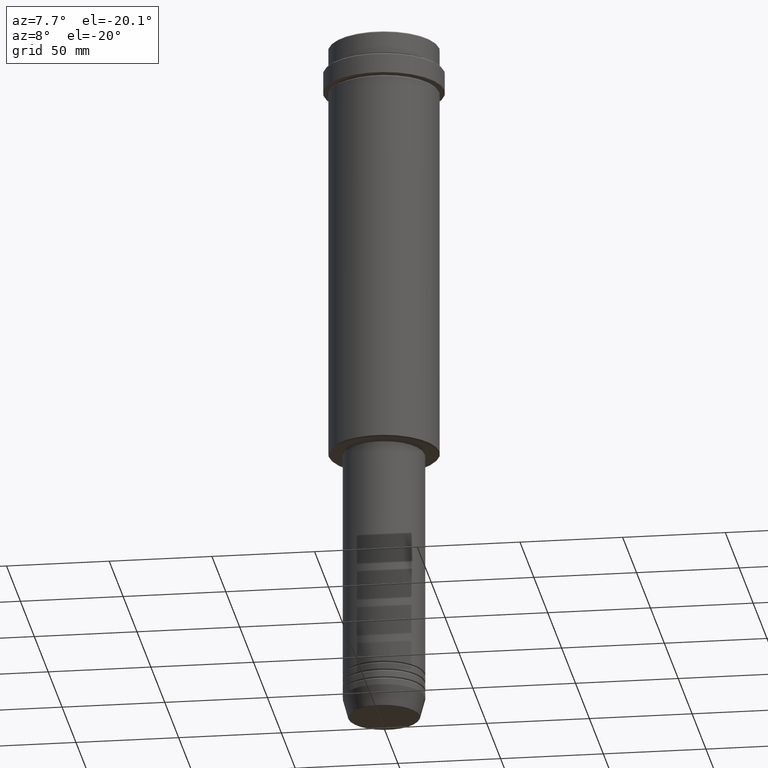
[diagram: clean part render]
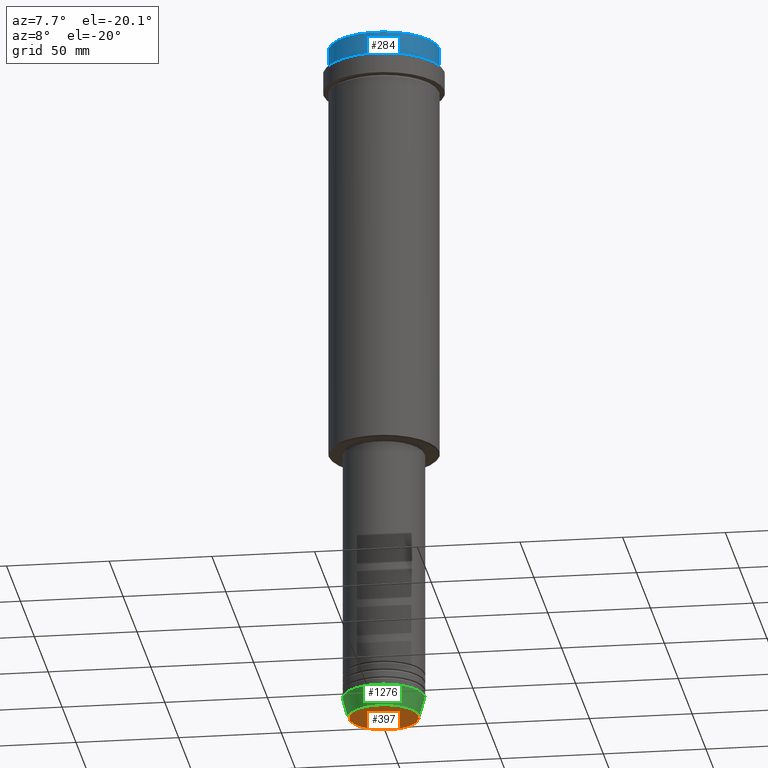
[diagram: same view with three faces highlighted in distinct colors, each labeled with its STEP entity id]
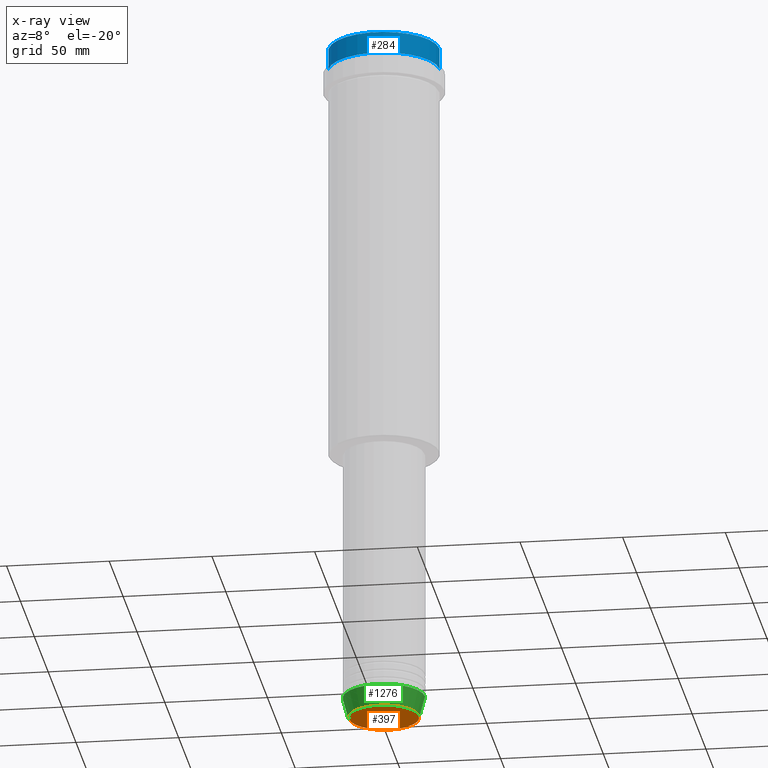
[diagram: x-ray of the same camera — body ghosted, the three highlighted faces saturated]
A machine part, auxiliary view with three faces highlighted in distinct colors.
The next image is the same camera in x-ray (body ghosted, the three faces saturated) — at least one of them is partly hidden behind the body in this view.
Their STEP definitions:

[orange] entity #397 — the highlighted planar face has unit normal (0, -0, 1).
#4 = CARTESIAN_POINT ( 'NONE',  ( 16.93684458169928675, 0.000000000000000000, -343.0000000000000000 ) ) ;
#127 = DIRECTION ( 'NONE',  ( 1.000000000000000000, 0.000000000000000000, 0.000000000000000000 ) ) ;
#151 = AXIS2_PLACEMENT_3D ( 'NONE', #1055, #731, #1165 ) ;
#244 = CARTESIAN_POINT ( 'NONE',  ( 0.000000000000000000, 0.000000000000000000, -343.0000000000000000 ) ) ;
#397 = ADVANCED_FACE ( 'NONE', ( #863 ), #646, .F. ) ;
#467 = VERTEX_POINT ( 'NONE', #4 ) ;
#475 = ORIENTED_EDGE ( 'NONE', *, *, #953, .T. ) ;
#515 = ORIENTED_EDGE ( 'NONE', *, *, #548, .T. ) ;
#548 = EDGE_CURVE ( 'NONE', #975, #467, #1202, .T. ) ;
#638 = DIRECTION ( 'NONE',  ( 0.000000000000000000, -0.000000000000000000, 1.000000000000000000 ) ) ;
#646 = PLANE ( 'NONE',  #992 ) ;
#731 = DIRECTION ( 'NONE',  ( 0.000000000000000000, 0.000000000000000000, -1.000000000000000000 ) ) ;
#736 = EDGE_LOOP ( 'NONE', ( #475, #515 ) ) ;
#839 = DIRECTION ( 'NONE',  ( 1.000000000000000000, 0.000000000000000000, 0.000000000000000000 ) ) ;
#863 = FACE_OUTER_BOUND ( 'NONE', #736, .T. ) ;
#945 = CARTESIAN_POINT ( 'NONE',  ( 0.000000000000000000, 0.000000000000000000, -343.0000000000000000 ) ) ;
#953 = EDGE_CURVE ( 'NONE', #467, #975, #1205, .T. ) ;
#975 = VERTEX_POINT ( 'NONE', #1409 ) ;
#992 = AXIS2_PLACEMENT_3D ( 'NONE', #945, #638, #839 ) ;
#1055 = CARTESIAN_POINT ( 'NONE',  ( 0.000000000000000000, 0.000000000000000000, -343.0000000000000000 ) ) ;
#1165 = DIRECTION ( 'NONE',  ( 1.000000000000000000, 0.000000000000000000, 0.000000000000000000 ) ) ;
#1202 = CIRCLE ( 'NONE', #1271, 16.93684458169928675 ) ;
#1205 = CIRCLE ( 'NONE', #151, 16.93684458169928675 ) ;
#1211 = DIRECTION ( 'NONE',  ( 0.000000000000000000, 0.000000000000000000, -1.000000000000000000 ) ) ;
#1271 = AXIS2_PLACEMENT_3D ( 'NONE', #244, #1211, #127 ) ;
#1409 = CARTESIAN_POINT ( 'NONE',  ( -16.93684458169928675, 2.103738199747889592E-15, -343.0000000000000000 ) ) ;

[blue] entity #284 — the highlighted cylindrical surface (partial cylindrical patch) has radius 27 mm, axis along (-0, -0, 1).
#43 = DIRECTION ( 'NONE',  ( -0.000000000000000000, -0.000000000000000000, 1.000000000000000000 ) ) ;
#146 = DIRECTION ( 'NONE',  ( -0.000000000000000000, -0.000000000000000000, 1.000000000000000000 ) ) ;
#159 = DIRECTION ( 'NONE',  ( 1.000000000000000000, 0.000000000000000000, 0.000000000000000000 ) ) ;
#220 = AXIS2_PLACEMENT_3D ( 'NONE', #1297, #517, #1306 ) ;
#256 = EDGE_LOOP ( 'NONE', ( #1001, #613, #713, #388 ) ) ;
#262 = LINE ( 'NONE', #819, #921 ) ;
#272 = LINE ( 'NONE', #928, #1013 ) ;
#284 = ADVANCED_FACE ( 'NONE', ( #588 ), #293, .T. ) ;
#293 = CYLINDRICAL_SURFACE ( 'NONE', #1033, 27.00000000000000355 ) ;
#388 = ORIENTED_EDGE ( 'NONE', *, *, #990, .T. ) ;
#478 = DIRECTION ( 'NONE',  ( -0.000000000000000000, -0.000000000000000000, 1.000000000000000000 ) ) ;
#517 = DIRECTION ( 'NONE',  ( -0.000000000000000000, -0.000000000000000000, 1.000000000000000000 ) ) ;
#540 = CIRCLE ( 'NONE', #220, 27.00000000000000355 ) ;
#588 = FACE_OUTER_BOUND ( 'NONE', #256, .T. ) ;
#613 = ORIENTED_EDGE ( 'NONE', *, *, #943, .T. ) ;
#698 = CIRCLE ( 'NONE', #1387, 27.00000000000000355 ) ;
#703 = EDGE_CURVE ( 'NONE', #1215, #924, #262, .T. ) ;
#713 = ORIENTED_EDGE ( 'NONE', *, *, #783, .T. ) ;
#717 = CARTESIAN_POINT ( 'NONE',  ( 27.00000000000000355, 0.000000000000000000, -11.00000000000000178 ) ) ;
#745 = CARTESIAN_POINT ( 'NONE',  ( 0.000000000000000000, 0.000000000000000000, -0.4999999999999241163 ) ) ;
#783 = EDGE_CURVE ( 'NONE', #810, #1407, #272, .T. ) ;
#810 = VERTEX_POINT ( 'NONE', #717 ) ;
#819 = CARTESIAN_POINT ( 'NONE',  ( -27.00000000000000355, 3.306546357697854128E-15, 0.000000000000000000 ) ) ;
#821 = CARTESIAN_POINT ( 'NONE',  ( 0.000000000000000000, 0.000000000000000000, 0.000000000000000000 ) ) ;
#824 = CARTESIAN_POINT ( 'NONE',  ( 27.00000000000000355, 0.000000000000000000, -0.4999999999999241163 ) ) ;
#921 = VECTOR ( 'NONE', #146, 1000.000000000000000 ) ;
#924 = VERTEX_POINT ( 'NONE', #1386 ) ;
#928 = CARTESIAN_POINT ( 'NONE',  ( 27.00000000000000355, 0.000000000000000000, 0.000000000000000000 ) ) ;
#943 = EDGE_CURVE ( 'NONE', #1215, #810, #540, .T. ) ;
#950 = DIRECTION ( 'NONE',  ( 0.000000000000000000, 0.000000000000000000, -1.000000000000000000 ) ) ;
#990 = EDGE_CURVE ( 'NONE', #1407, #924, #698, .T. ) ;
#1001 = ORIENTED_EDGE ( 'NONE', *, *, #703, .F. ) ;
#1013 = VECTOR ( 'NONE', #43, 1000.000000000000000 ) ;
#1033 = AXIS2_PLACEMENT_3D ( 'NONE', #821, #478, #159 ) ;
#1215 = VERTEX_POINT ( 'NONE', #1274 ) ;
#1274 = CARTESIAN_POINT ( 'NONE',  ( -27.00000000000000355, 3.306546357697854128E-15, -11.00000000000000178 ) ) ;
#1297 = CARTESIAN_POINT ( 'NONE',  ( 0.000000000000000000, 0.000000000000000000, -11.00000000000000178 ) ) ;
#1306 = DIRECTION ( 'NONE',  ( 1.000000000000000000, 0.000000000000000000, 0.000000000000000000 ) ) ;
#1386 = CARTESIAN_POINT ( 'NONE',  ( -27.00000000000000355, 3.306546357697854128E-15, -0.4999999999999241163 ) ) ;
#1387 = AXIS2_PLACEMENT_3D ( 'NONE', #745, #950, #1394 ) ;
#1394 = DIRECTION ( 'NONE',  ( 1.000000000000000000, 0.000000000000000000, 0.000000000000000000 ) ) ;
#1407 = VERTEX_POINT ( 'NONE', #824 ) ;

[green] entity #1276 — the highlighted conical surface has half-angle 15 deg.
#14 = ORIENTED_EDGE ( 'NONE', *, *, #1283, .T. ) ;
#81 = DIRECTION ( 'NONE',  ( -0.000000000000000000, -0.000000000000000000, 1.000000000000000000 ) ) ;
#93 = CARTESIAN_POINT ( 'NONE',  ( 20.00000000000000000, 0.000000000000000000, -333.0000000000000000 ) ) ;
#104 = FACE_OUTER_BOUND ( 'NONE', #595, .T. ) ;
#105 = CARTESIAN_POINT ( 'NONE',  ( 0.000000000000000000, 0.000000000000000000, -342.6294095225512706 ) ) ;
#175 = ORIENTED_EDGE ( 'NONE', *, *, #1337, .F. ) ;
#214 = VERTEX_POINT ( 'NONE', #1119 ) ;
#267 = ORIENTED_EDGE ( 'NONE', *, *, #416, .T. ) ;
#307 = CONICAL_SURFACE ( 'NONE', #823, 20.00000000000000000, 0.2617993877991499074 ) ;
#316 = DIRECTION ( 'NONE',  ( -0.000000000000000000, -0.000000000000000000, 1.000000000000000000 ) ) ;
#364 = CIRCLE ( 'NONE', #903, 20.00000000000000000 ) ;
#379 = CIRCLE ( 'NONE', #1174, 17.41980749484382684 ) ;
#389 = CARTESIAN_POINT ( 'NONE',  ( -20.00000000000000000, 2.449293598294706513E-15, -333.0000000000000000 ) ) ;
#416 = EDGE_CURVE ( 'NONE', #1063, #980, #379, .T. ) ;
#431 = DIRECTION ( 'NONE',  ( 0.2588190451025211836, 0.000000000000000000, 0.9659258262890680902 ) ) ;
#485 = LINE ( 'NONE', #389, #913 ) ;
#508 = CARTESIAN_POINT ( 'NONE',  ( 0.000000000000000000, 0.000000000000000000, -333.0000000000000000 ) ) ;
#519 = DIRECTION ( 'NONE',  ( 1.000000000000000000, 0.000000000000000000, 0.000000000000000000 ) ) ;
#523 = DIRECTION ( 'NONE',  ( 1.000000000000000000, 0.000000000000000000, 0.000000000000000000 ) ) ;
#529 = VERTEX_POINT ( 'NONE', #1009 ) ;
#533 = DIRECTION ( 'NONE',  ( -0.000000000000000000, -0.000000000000000000, 1.000000000000000000 ) ) ;
#595 = EDGE_LOOP ( 'NONE', ( #175, #267, #14, #792 ) ) ;
#707 = DIRECTION ( 'NONE',  ( -0.2588190451025211836, 3.169619151431770488E-17, 0.9659258262890680902 ) ) ;
#792 = ORIENTED_EDGE ( 'NONE', *, *, #905, .F. ) ;
#823 = AXIS2_PLACEMENT_3D ( 'NONE', #1057, #81, #519 ) ;
#903 = AXIS2_PLACEMENT_3D ( 'NONE', #508, #316, #523 ) ;
#905 = EDGE_CURVE ( 'NONE', #529, #214, #364, .T. ) ;
#913 = VECTOR ( 'NONE', #707, 1000.000000000000114 ) ;
#951 = LINE ( 'NONE', #93, #1101 ) ;
#980 = VERTEX_POINT ( 'NONE', #1401 ) ;
#981 = CARTESIAN_POINT ( 'NONE',  ( -17.41980749484382684, 2.291302373663531915E-15, -342.6294095225512706 ) ) ;
#1009 = CARTESIAN_POINT ( 'NONE',  ( -20.00000000000000000, 2.449293598294706513E-15, -333.0000000000000000 ) ) ;
#1057 = CARTESIAN_POINT ( 'NONE',  ( 0.000000000000000000, 0.000000000000000000, -333.0000000000000000 ) ) ;
#1063 = VERTEX_POINT ( 'NONE', #981 ) ;
#1101 = VECTOR ( 'NONE', #431, 1000.000000000000114 ) ;
#1119 = CARTESIAN_POINT ( 'NONE',  ( 20.00000000000000000, 0.000000000000000000, -333.0000000000000000 ) ) ;
#1174 = AXIS2_PLACEMENT_3D ( 'NONE', #105, #533, #1191 ) ;
#1191 = DIRECTION ( 'NONE',  ( 1.000000000000000000, 0.000000000000000000, 0.000000000000000000 ) ) ;
#1276 = ADVANCED_FACE ( 'NONE', ( #104 ), #307, .T. ) ;
#1283 = EDGE_CURVE ( 'NONE', #980, #214, #951, .T. ) ;
#1337 = EDGE_CURVE ( 'NONE', #1063, #529, #485, .T. ) ;
#1401 = CARTESIAN_POINT ( 'NONE',  ( 17.41980749484382684, 0.000000000000000000, -342.6294095225512706 ) ) ;